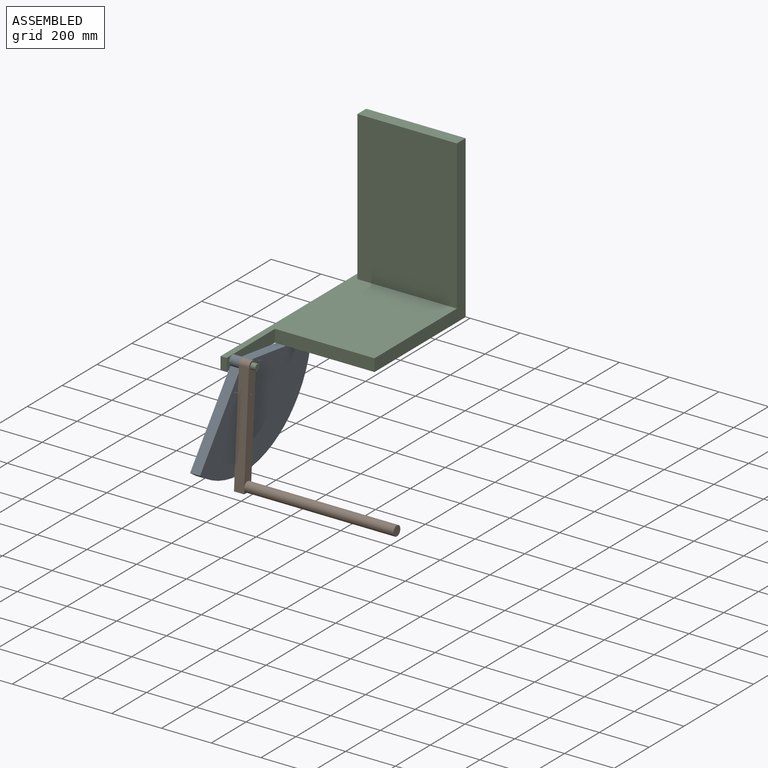
[diagram: assembled view]
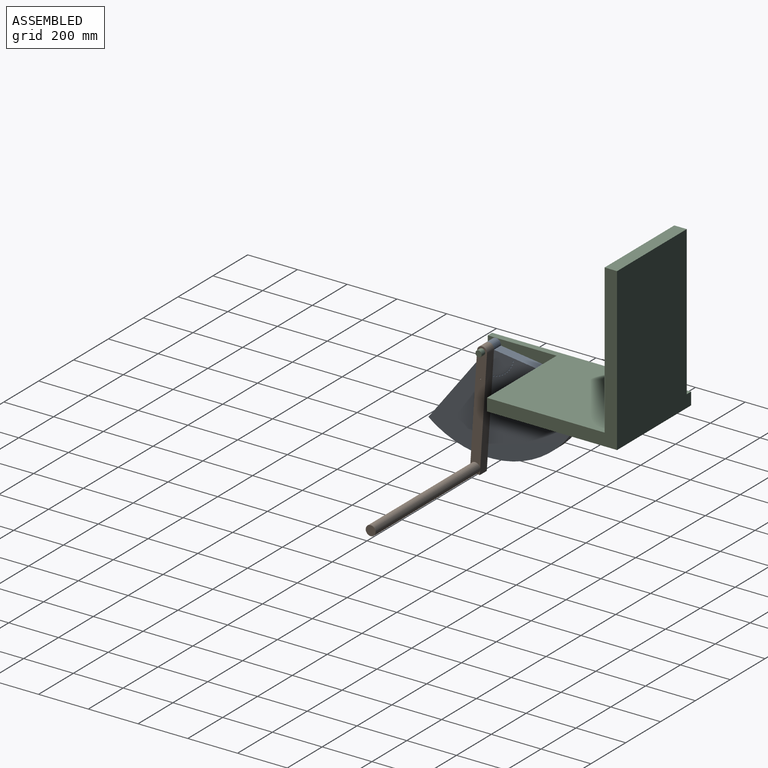
[diagram: assembled view, second angle]
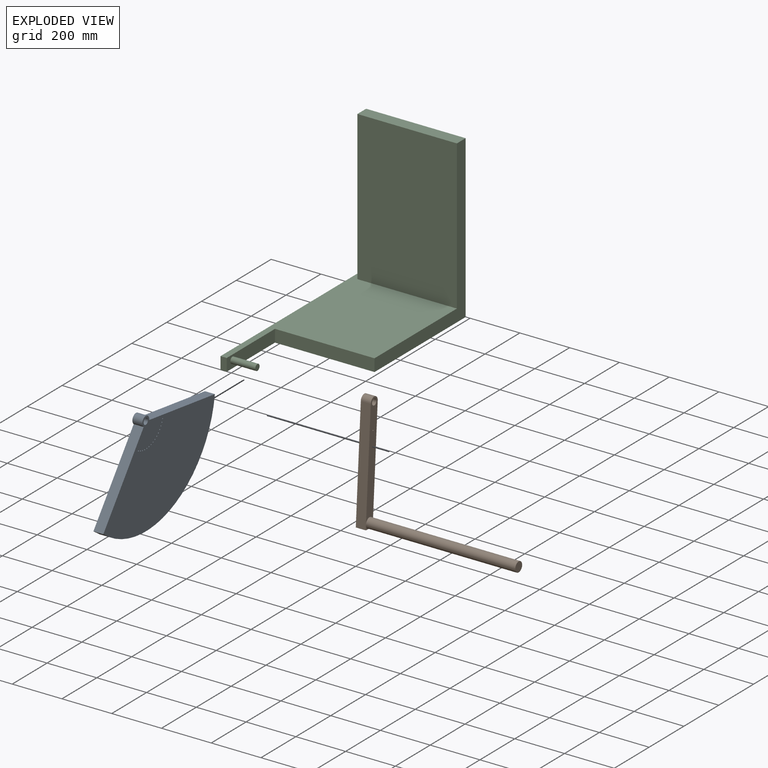
[diagram: exploded view]
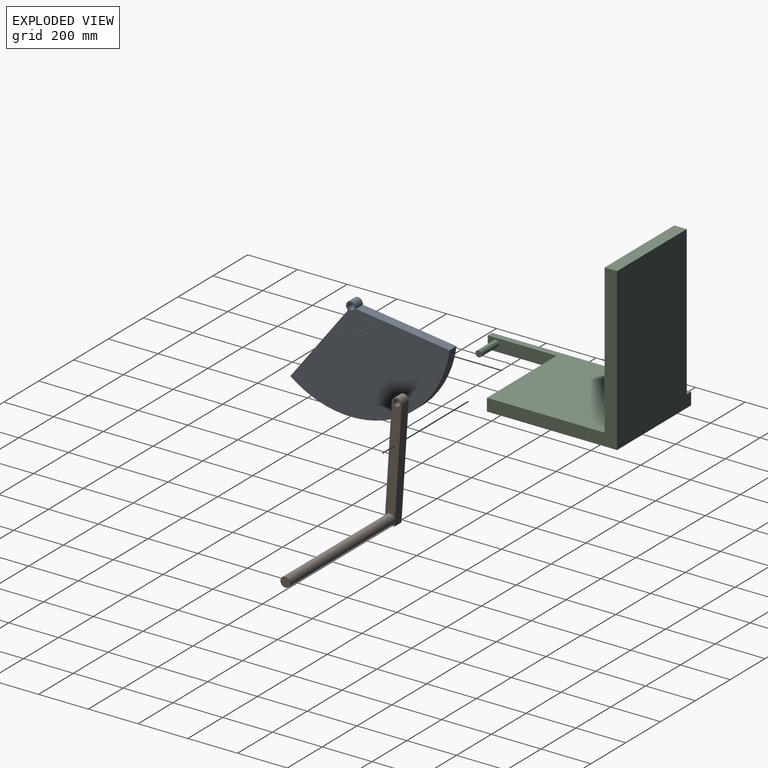
[diagram: exploded view, second angle]
ASSEMBLY  parts=3 mates=3
PART A: 22 faces, bbox 686.8x40x420 mm
  f0: plane 351.19x145.14mm, normal (0.38,0,0.92), area 15200mm2, adj f1,f18,f20,f21
  f1: cylinder r=20mm len=40mm, axis (0,1,0), area 3351mm2, adj f0,f2,f20,f21
  f2: plane 301.29x231.57mm, normal (-0.61,0,0.79), area 15200mm2, adj f1,f18,f20,f21
  f3: cylinder r=2.5mm len=40mm, axis (0,1,0), area 628.3mm2, adj f20,f21
  f4: cylinder r=2.5mm len=40mm, axis (0,1,0), area 628.3mm2, adj f20,f21
  f5: cylinder r=2.5mm len=40mm, axis (0,1,0), area 628.3mm2, adj f20,f21
  f6: cylinder r=2.5mm len=40mm, axis (0,1,0), area 628.3mm2, adj f20,f21
  f7: cylinder r=2.5mm len=40mm, axis (0,1,0), area 628.3mm2, adj f20,f21
  f8: cylinder r=2.5mm len=40mm, axis (0,1,0), area 628.3mm2, adj f20,f21
  f9: cylinder r=2.5mm len=40mm, axis (0,1,0), area 628.3mm2, adj f20,f21
  f10: cylinder r=2.5mm len=40mm, axis (0,1,0), area 628.3mm2, adj f20,f21
  f11: cylinder r=2.5mm len=40mm, axis (0,1,0), area 628.3mm2, adj f20,f21
  f12: cylinder r=2.5mm len=40mm, axis (0,1,0), area 628.3mm2, adj f20,f21
  f13: cylinder r=2.5mm len=40mm, axis (0,1,0), area 628.3mm2, adj f20,f21
  f14: cylinder r=2.5mm len=40mm, axis (0,1,0), area 628.3mm2, adj f20,f21
  f15: cylinder r=2.5mm len=40mm, axis (0,1,0), area 628.3mm2, adj f20,f21
  f16: cylinder r=2.5mm len=40mm, axis (0,1,0), area 628.3mm2, adj f20,f21
  f17: cylinder r=12.5mm len=40mm, axis (0,1,0), area 3141.6mm2, adj f20,f21
  f18: cylinder r=400mm len=686.82mm, axis (0,1,0), area 33510.3mm2, adj f0,f2,f20,f21
  f19: cylinder r=2.5mm len=40mm, axis (0,1,0), area 628.3mm2, adj f20,f21
  f20: plane 686.82x420mm, normal (0,-1,0), area 167604mm2, adj f0,f1,f2,f3,f4,f5,f6,f7
  f21: plane 686.82x420mm, normal (0,1,0), area 167604mm2, adj f0,f1,f2,f3,f4,f5,f6,f7
PART B: 11 faces, bbox 40x640x470 mm
  f0: plane 40x20.98mm, normal (0,1,0), area 211mm2, adj f1,f3,f5,f9
  f1: plane 450x40mm, normal (1,0,0), area 18000mm2, adj f0,f2,f5,f7,f8
  f2: cylinder r=20mm len=40mm, axis (0,1,0), area 2513.3mm2, adj f1,f3,f7,f8
  f3: plane 450x40mm, normal (-1,0,0), area 18000mm2, adj f0,f2,f5,f7,f8
  f4: cylinder r=2.5mm len=40mm, axis (0,1,0), area 628.3mm2, adj f7,f8
  f5: plane 40x40mm, normal (0,0,-1), area 1600mm2, adj f0,f1,f3,f7
  f6: cylinder r=12.5mm len=40mm, axis (0,1,0), area 3141.6mm2, adj f7,f8
  f7: plane 470x40mm, normal (0,-1,0), area 18117.8mm2, adj f1,f2,f3,f4,f5,f6
  f8: plane 449.02x40mm, normal (0,1,0), area 16650.2mm2, adj f1,f2,f3,f4,f6,f9
  f9: cylinder r=20mm len=600mm, axis (0,-1,0), area 75398.2mm2, adj f0,f8,f10
  f10: plane 40x40mm, normal (0,1,0), area 1256.6mm2, adj f9
PART C: 13 faces, bbox 425x800x650 mm
  f0: plane 800x425mm, normal (0,0,1), area 209224.6mm2, adj f1,f3,f4,f5,f7,f8,f9,f10
  f1: plane 50x25mm, normal (0,-1,0), area 1250mm2, adj f0,f2,f4,f5
  f2: plane 800x425mm, normal (0,0,-1), area 229224.6mm2, adj f1,f3,f4,f5,f8,f9
  f3: plane 650x425mm, normal (0,1,0), area 261250mm2, adj f0,f2,f4,f6,f9,f10
  f4: plane 800x50mm, normal (-1,0,0), area 40000mm2, adj f0,f1,f2,f3
  f5: plane 276.94x50mm, normal (1,0,0), area 13356.1mm2, adj f0,f1,f2,f8,f11
  f6: plane 400x50mm, normal (0,0,1), area 20000mm2, adj f3,f7,f9,f10
  f7: plane 600x400mm, normal (0,-1,0), area 240000mm2, adj f0,f6,f9,f10
  f8: plane 400x50mm, normal (0,-1,0), area 20000mm2, adj f0,f2,f5,f9
  f9: plane 650x523.06mm, normal (1,0,0), area 56153.1mm2, adj f0,f2,f3,f6,f7,f8
  f10: plane 600x50mm, normal (-1,0,0), area 30000mm2, adj f0,f3,f6,f7
  f11: cylinder r=12.5mm len=100mm, axis (-1,0,0), area 7854mm2, adj f5,f12
  f12: plane 25x25mm, normal (1,0,0), area 490.9mm2, adj f11
PLACE A rot(axis=(0.25,0.25,-0.94),93.8deg) t=(-1029.55,-750.17,-85.09)mm
PLACE B rot(axis=(-0.03,-0.03,-1),90.1deg) t=(-989.55,-750.17,-85.09)mm
PLACE C t=(-1069.55,-304.97,175.19)mm fixed
MATE revolute B.f6 <-> A.f17  axis (-1,0,0) through (-1029.55,-750.17,-85.09)mm
MATE revolute B.f4 <-> A.f5  axis (-1,0,0) through (-1029.55,-756.6,-184.88)mm
MATE revolute A.f17 <-> C.f11  axis (-1,0,0) through (-1069.55,-750.17,-85.09)mm
